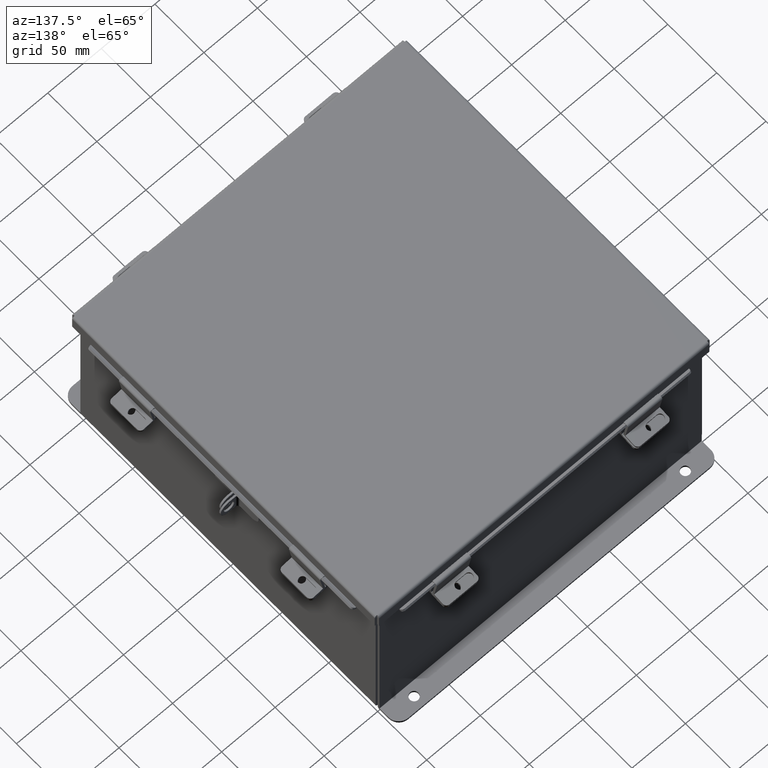
[diagram: clean part render]
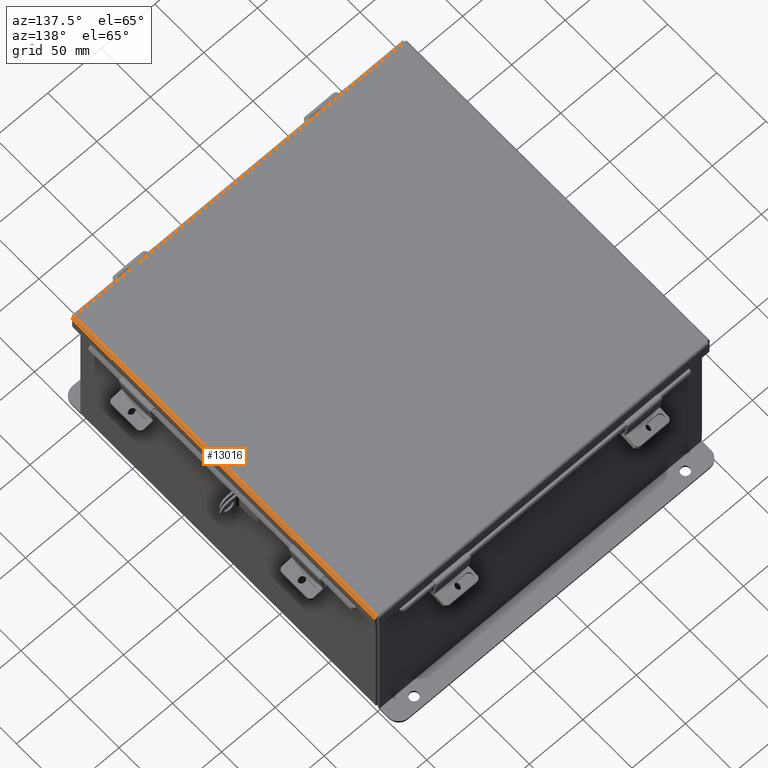
[diagram: same view with one face highlighted and labeled with its STEP entity id]
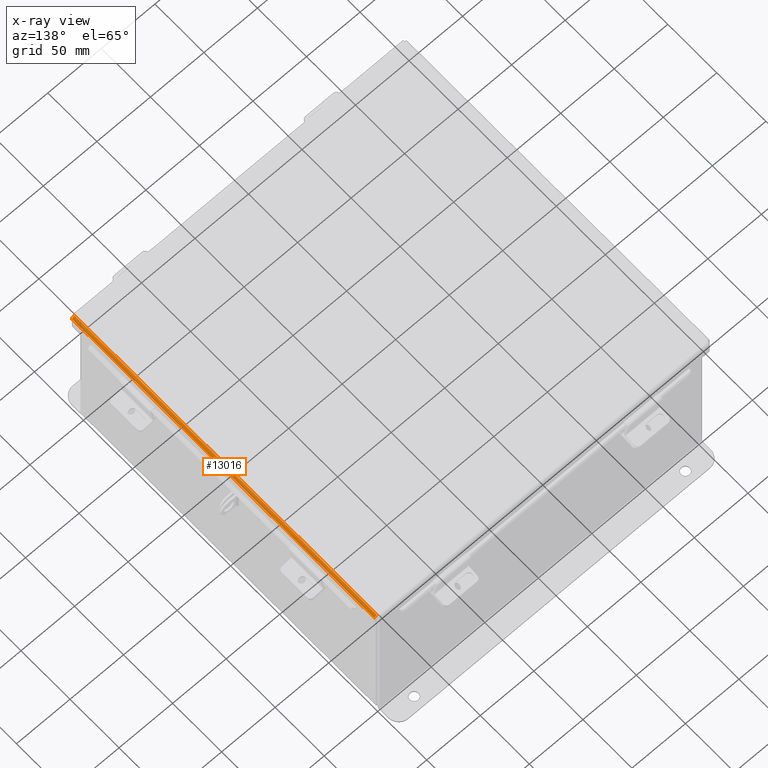
[diagram: x-ray of the same camera — body ghosted, the highlighted face saturated]
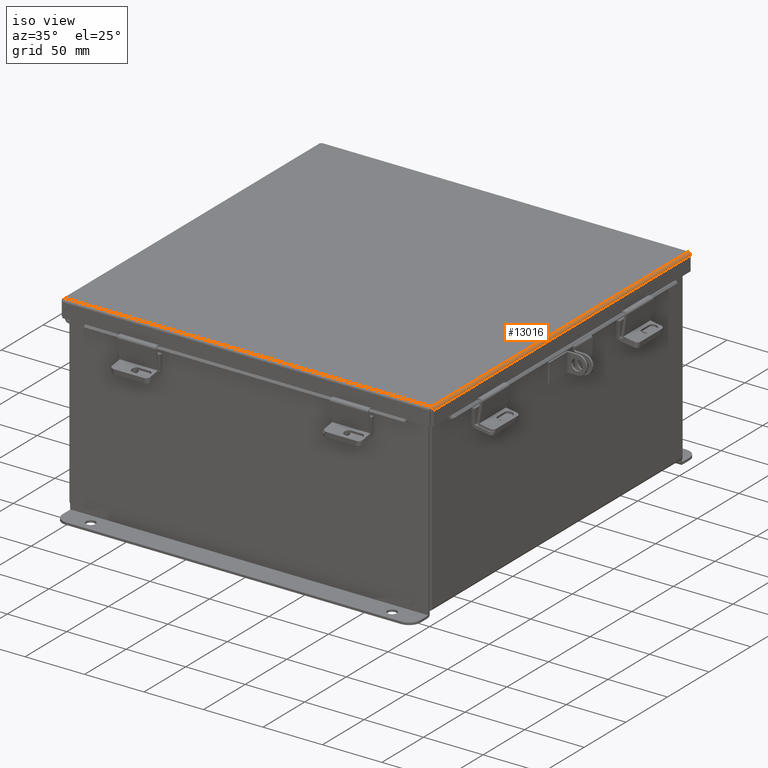
[diagram: same view with one face highlighted and labeled with its STEP entity id]
A machine part, auxiliary view. The second image highlights one B-rep face of the part: STEP entity #13016.
The next image is the same camera in x-ray: the body ghosted, the highlighted face saturated — about 0% of this face is hidden behind the body in this view.
A second angle (iso view) of the same face is appended — the face is thin or edge-on in the first view.
In plain terms, the highlighted cylindrical surface (edge-blend (fillet) strip) has radius 2.2276 mm, axis along (-0, -1, -0).
Its self-contained STEP definition (entity closure, byte-faithful):
#546 = VERTEX_POINT ( 'NONE', #17285 ) ;
#875 = DIRECTION ( 'NONE',  ( -0.0000000000000000000, 1.000000000000000000, -0.0000000000000000000 ) ) ;
#1062 = DIRECTION ( 'NONE',  ( 0.0000000000000000000, -1.000000000000000000, 0.0000000000000000000 ) ) ;
#1143 = CARTESIAN_POINT ( 'NONE',  ( -6.068550000000000100, -6.068550000000000100, -0.07469999999999993300 ) ) ;
#1429 = CARTESIAN_POINT ( 'NONE',  ( -6.156249999999999100, -6.073984854505791700, 0.001520096845007091700 ) ) ;
#1860 = CARTESIAN_POINT ( 'NONE',  ( -6.080029903154992300, 6.069044077682344900, -0.07469999999999994700 ) ) ;
#2304 = CARTESIAN_POINT ( 'NONE',  ( -6.156250000000000000, 6.156249999999998200, 0.01299999999999978100 ) ) ;
#2432 = DIRECTION ( 'NONE',  ( -1.000000000000000000, 0.0000000000000000000, -4.477801015840783100E-015 ) ) ;
#2789 = CARTESIAN_POINT ( 'NONE',  ( -6.156250000000000000, -6.074478932188137400, 0.01299999999999978100 ) ) ;
#2843 = VECTOR ( 'NONE', #3728, 39.37007874015748100 ) ;
#3473 = CARTESIAN_POINT ( 'NONE',  ( -6.068550000000000100, 6.068550000000000100, -0.07469999999999993300 ) ) ;
#3694 = CYLINDRICAL_SURFACE ( 'NONE', #12128, 0.08770000000000026400 ) ;
#3728 = DIRECTION ( 'NONE',  ( -0.0000000000000000000, 1.000000000000000000, -0.0000000000000000000 ) ) ;
#4170 = CARTESIAN_POINT ( 'NONE',  ( -6.145181066258666100, -6.072502621458756500, -0.03116738457852799900 ) ) ;
#4633 = CARTESIAN_POINT ( 'NONE',  ( -6.112717384578525400, 6.070526310729377400, -0.06363106625866835100 ) ) ;
#5543 = CARTESIAN_POINT ( 'NONE',  ( -6.122445747341799000, -6.071020388411725800, -0.05713078207832041800 ) ) ;
#5669 = LINE ( 'NONE', #2304, #16255 ) ;
#5993 = CARTESIAN_POINT ( 'NONE',  ( -6.138680782078321100, 6.072008543776413500, -0.04089574734180011200 ) ) ;
#6128 = ORIENTED_EDGE ( 'NONE', *, *, #14039, .F. ) ;
#6223 = EDGE_CURVE ( 'NONE', #17310, #11566, #6610, .T. ) ;
#6424 = CARTESIAN_POINT ( 'NONE',  ( -6.068550000000000100, -6.074478932188137400, -0.07469999999999993300 ) ) ;
#6610 = B_SPLINE_CURVE_WITH_KNOTS ( 'NONE', 3,
 ( #2789, #1429, #9628, #4170, #13776, #5543, #15194, #6931, #16599, #8291 ),
 .UNSPECIFIED., .F., .F.,
 ( 4, 2, 2, 2, 4 ),
 ( 0.0000000000000000000, 0.2500000000000000000, 0.5000000000000000000, 0.7500000000000000000, 1.000000000000000000 ),
 .UNSPECIFIED. ) ;
#6931 = CARTESIAN_POINT ( 'NONE',  ( -6.091505289458309500, -6.069538155364689700, -0.07241740374381121200 ) ) ;
#7350 = FACE_OUTER_BOUND ( 'NONE', #10365, .T. ) ;
#7382 = CARTESIAN_POINT ( 'NONE',  ( -6.153967403743811500, 6.073490776823449600, -0.009955289458309054700 ) ) ;
#7410 = CARTESIAN_POINT ( 'NONE',  ( -6.156250000000000000, -6.074478932188137400, 0.01299999999999978100 ) ) ;
#7728 = B_SPLINE_CURVE_WITH_KNOTS ( 'NONE', 3,
 ( #8695, #1860, #12866, #4633, #14227, #5993, #15658, #7382, #17040, #8747 ),
 .UNSPECIFIED., .F., .F.,
 ( 4, 2, 2, 2, 4 ),
 ( 0.0000000000000000000, 0.2500000000000000000, 0.5000000000000000000, 0.7500000000000000000, 1.000000000000000000 ),
 .UNSPECIFIED. ) ;
#7841 = CARTESIAN_POINT ( 'NONE',  ( -6.068550000000000100, -6.074478932188137400, 0.01300000000000016400 ) ) ;
#8291 = CARTESIAN_POINT ( 'NONE',  ( -6.068550000000000100, -6.068550000000000100, -0.07469999999999993300 ) ) ;
#8317 = EDGE_CURVE ( 'NONE', #11566, #14143, #10141, .T. ) ;
#8695 = CARTESIAN_POINT ( 'NONE',  ( -6.068550000000000100, 6.068550000000000100, -0.07469999999999993300 ) ) ;
#8747 = CARTESIAN_POINT ( 'NONE',  ( -6.156250000000000000, 6.074478932188137400, 0.01299999999999977400 ) ) ;
#9628 = CARTESIAN_POINT ( 'NONE',  ( -6.153967403743811500, -6.073490776823450500, -0.009955289458309056500 ) ) ;
#10141 = LINE ( 'NONE', #6424, #2843 ) ;
#10365 = EDGE_LOOP ( 'NONE', ( #11061, #11379, #10443, #6128 ) ) ;
#10443 = ORIENTED_EDGE ( 'NONE', *, *, #12214, .T. ) ;
#11061 = ORIENTED_EDGE ( 'NONE', *, *, #8317, .F. ) ;
#11379 = ORIENTED_EDGE ( 'NONE', *, *, #6223, .F. ) ;
#11566 = VERTEX_POINT ( 'NONE', #1143 ) ;
#12128 = AXIS2_PLACEMENT_3D ( 'NONE', #7841, #1062, #2432 ) ;
#12214 = EDGE_CURVE ( 'NONE', #17310, #546, #5669, .T. ) ;
#12866 = CARTESIAN_POINT ( 'NONE',  ( -6.091505289458310400, 6.069538155364688800, -0.07241740374381121200 ) ) ;
#13016 = ADVANCED_FACE ( 'NONE', ( #7350 ), #3694, .T. ) ;
#13776 = CARTESIAN_POINT ( 'NONE',  ( -6.138680782078321100, -6.072008543776413500, -0.04089574734180010500 ) ) ;
#14039 = EDGE_CURVE ( 'NONE', #14143, #546, #7728, .T. ) ;
#14143 = VERTEX_POINT ( 'NONE', #3473 ) ;
#14227 = CARTESIAN_POINT ( 'NONE',  ( -6.122445747341799900, 6.071020388411724000, -0.05713078207832041800 ) ) ;
#15194 = CARTESIAN_POINT ( 'NONE',  ( -6.112717384578528100, -6.070526310729379200, -0.06363106625866837800 ) ) ;
#15658 = CARTESIAN_POINT ( 'NONE',  ( -6.145181066258667900, 6.072502621458759200, -0.03116738457852800300 ) ) ;
#16255 = VECTOR ( 'NONE', #875, 39.37007874015748100 ) ;
#16599 = CARTESIAN_POINT ( 'NONE',  ( -6.080029903154993100, -6.069044077682344900, -0.07469999999999994700 ) ) ;
#17040 = CARTESIAN_POINT ( 'NONE',  ( -6.156250000000000000, 6.073984854505791700, 0.001520096845007091700 ) ) ;
#17285 = CARTESIAN_POINT ( 'NONE',  ( -6.156250000000000000, 6.074478932188137400, 0.01299999999999977400 ) ) ;
#17310 = VERTEX_POINT ( 'NONE', #7410 ) ;